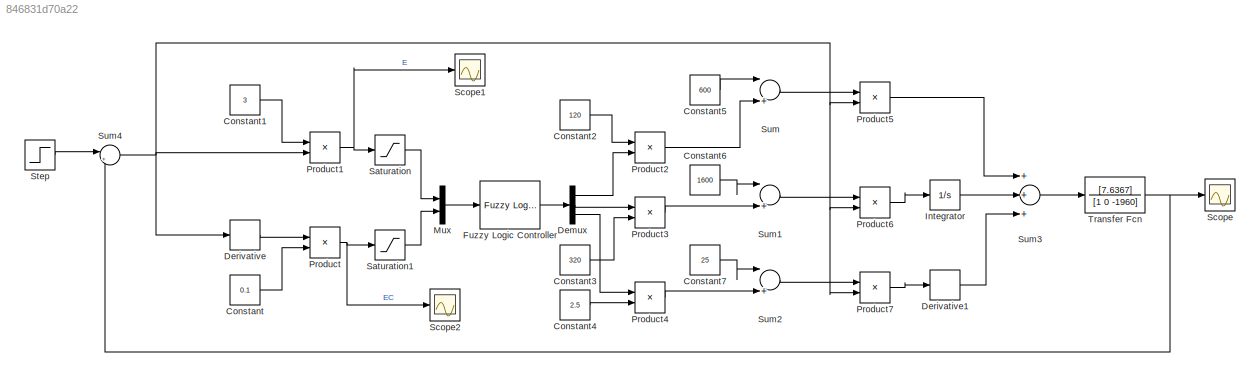
MODEL slx_846831d70a22
KIND model
BLOCK [Constant] Constant
  Value = 0.1
BLOCK [Constant] Constant1
  Value = 3
BLOCK [Constant] Constant2
  Value = 120
BLOCK [Constant] Constant3
  Value = 320
BLOCK [Constant] Constant4
  Value = 2.5
BLOCK [Constant] Constant5
  Value = 600
BLOCK [Constant] Constant6
  Value = 1600
BLOCK [Constant] Constant7
  Value = 25
BLOCK [Demux] Demux
  DisplayOption = bar
  Outputs = 3
  Ports = [1, 3]
BLOCK [Derivative] Derivative
BLOCK [Derivative] Derivative1
BLOCK [Reference] Fuzzy Logic Controller  REF=fuzblock/Fuzzy Logic   (lib defined in mdl_858b3b3e7478)
Controller
  Ports = [1, 1]
  SourceBlock = fuzblock/Fuzzy Logic \nController
  SourceType = FIS
  fis = fzy
BLOCK [Integrator] Integrator
  Ports = [1, 1]
BLOCK [Mux] Mux
  DisplayOption = bar
  Inputs = 2
  Ports = [2, 1]
BLOCK [Product] Product
  InputSameDT = off
  OutDataTypeStr = Inherit: Inherit via internal rule
  Ports = [2, 1]
  RndMeth = Floor
  SaturateOnIntegerOverflow = off
BLOCK [Product] Product1
  InputSameDT = off
  OutDataTypeStr = Inherit: Inherit via internal rule
  Ports = [2, 1]
  RndMeth = Floor
  SaturateOnIntegerOverflow = off
BLOCK [Product] Product2
  InputSameDT = off
  OutDataTypeStr = Inherit: Inherit via internal rule
  Ports = [2, 1]
  RndMeth = Floor
  SaturateOnIntegerOverflow = off
BLOCK [Product] Product3
  InputSameDT = off
  OutDataTypeStr = Inherit: Inherit via internal rule
  Ports = [2, 1]
  RndMeth = Floor
  SaturateOnIntegerOverflow = off
BLOCK [Product] Product4
  InputSameDT = off
  OutDataTypeStr = Inherit: Inherit via internal rule
  Ports = [2, 1]
  RndMeth = Floor
  SaturateOnIntegerOverflow = off
BLOCK [Product] Product5
  InputSameDT = off
  OutDataTypeStr = Inherit: Inherit via internal rule
  Ports = [2, 1]
  RndMeth = Floor
  SaturateOnIntegerOverflow = off
BLOCK [Product] Product6
  InputSameDT = off
  OutDataTypeStr = Inherit: Inherit via internal rule
  Ports = [2, 1]
  RndMeth = Floor
  SaturateOnIntegerOverflow = off
BLOCK [Product] Product7
  InputSameDT = off
  OutDataTypeStr = Inherit: Inherit via internal rule
  Ports = [2, 1]
  RndMeth = Floor
  SaturateOnIntegerOverflow = off
BLOCK [Saturate] Saturation
  InputPortMap = u0
  Ports = [1, 1]
BLOCK [Saturate] Saturation1
  InputPortMap = u0
  Ports = [1, 1]
BLOCK [Scope] Scope
  DataFormat = StructureWithTime
  Floating = off
  MaxDataPoints = 500000000
  NumInputPorts = 1
  Ports = [1]
  SaveName = FZY
  SaveToWorkspace = on
  ShowLegends = off
  YMax = 2
  YMin = 0
BLOCK [Scope] Scope1
  Floating = off
  NumInputPorts = 1
  Ports = [1]
  ShowLegends = off
BLOCK [Scope] Scope2
  Floating = off
  NumInputPorts = 1
  Ports = [1]
  SaveName = ScopeData1
  ShowLegends = off
BLOCK [Step] Step
  SampleTime = 0
BLOCK [Sum] Sum
  InputSameDT = off
  Inputs = |++
  OutDataTypeStr = Inherit: Inherit via internal rule
  Ports = [2, 1]
  SaturateOnIntegerOverflow = off
BLOCK [Sum] Sum1
  InputSameDT = off
  Inputs = |++
  OutDataTypeStr = Inherit: Inherit via internal rule
  Ports = [2, 1]
  SaturateOnIntegerOverflow = off
BLOCK [Sum] Sum2
  InputSameDT = off
  Inputs = |++
  OutDataTypeStr = Inherit: Inherit via internal rule
  Ports = [2, 1]
  SaturateOnIntegerOverflow = off
BLOCK [Sum] Sum3
  InputSameDT = off
  Inputs = +++
  OutDataTypeStr = Inherit: Inherit via internal rule
  Ports = [3, 1]
  SaturateOnIntegerOverflow = off
BLOCK [Sum] Sum4
  IconShape = round
  InputSameDT = off
  Inputs = |+-
  OutDataTypeStr = Inherit: Inherit via internal rule
  Ports = [2, 1]
  SaturateOnIntegerOverflow = off
BLOCK [TransferFcn] Transfer Fcn
  Denominator = [1 0 -1960]
  Numerator = [7.6367]
LINE Constant1:1 -> Product1:1
LINE Constant2:1 -> Product2:1
LINE Constant3:1 -> Product3:2
LINE Constant4:1 -> Product4:2
LINE Constant5:1 -> Sum:1
LINE Constant6:1 -> Sum1:1
LINE Constant7:1 -> Sum2:1
LINE Constant:1 -> Product:2
LINE Demux:1 -> Product2:2
LINE Demux:2 -> Product3:1
LINE Demux:3 -> Product4:1
LINE Derivative1:1 -> Sum3:3
LINE Derivative:1 -> Product:1
LINE Fuzzy Logic Controller:1 -> Demux:1
LINE Integrator:1 -> Sum3:2
LINE Mux:1 -> Fuzzy Logic Controller:1
NET Product1:1 -> Saturation:1, Scope1:1
LINE Product2:1 -> Sum:2
LINE Product3:1 -> Sum1:2
LINE Product4:1 -> Sum2:2
LINE Product5:1 -> Sum3:1
LINE Product6:1 -> Integrator:1
LINE Product7:1 -> Derivative1:1
NET Product:1 -> Saturation1:1, Scope2:1
LINE Saturation1:1 -> Mux:2
LINE Saturation:1 -> Mux:1
LINE Step:1 -> Sum4:1
LINE Sum1:1 -> Product6:1
LINE Sum2:1 -> Product7:1
LINE Sum3:1 -> Transfer Fcn:1
NET Sum4:1 -> Derivative:1, Product1:2, Product5:2, Product6:2, Product7:2
LINE Sum:1 -> Product5:1
NET Transfer Fcn:1 -> Scope:1, Sum4:2
note: NET lines group one-source signal fan-out (src -> all destinations, sorted); 1:1 wires keep LINE
